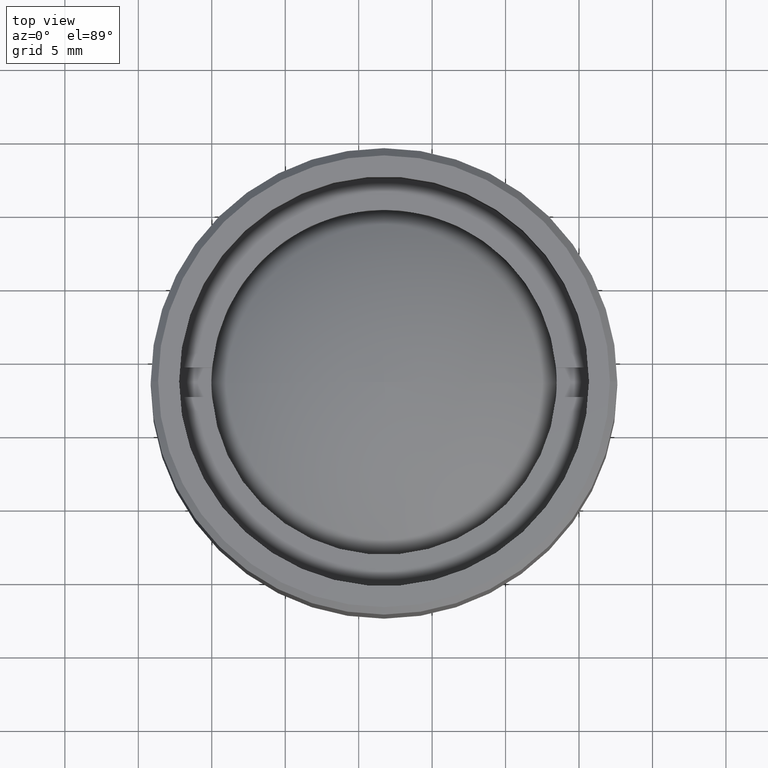
[diagram: clean part render]
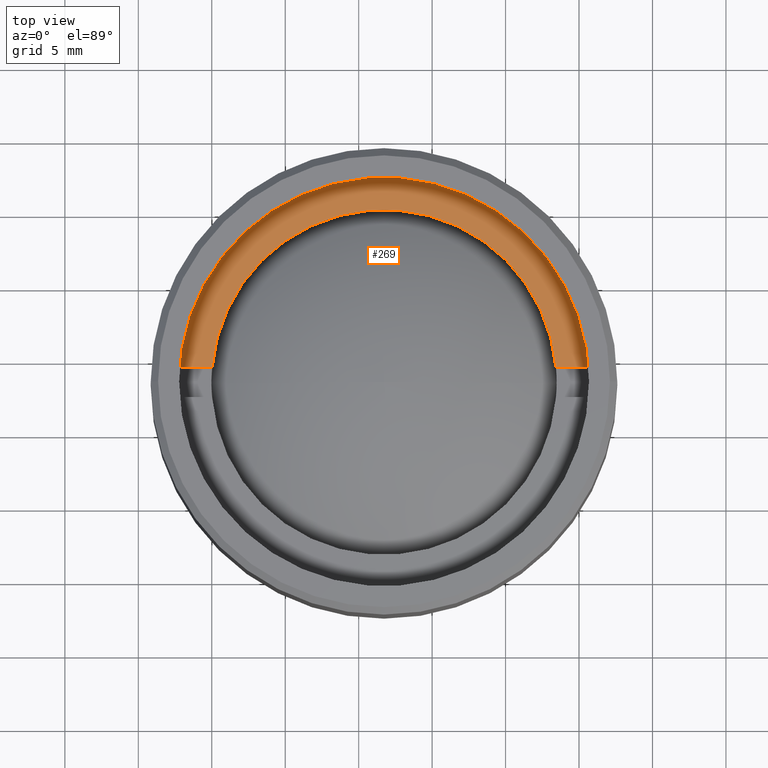
[diagram: same view with one face highlighted and labeled with its STEP entity id]
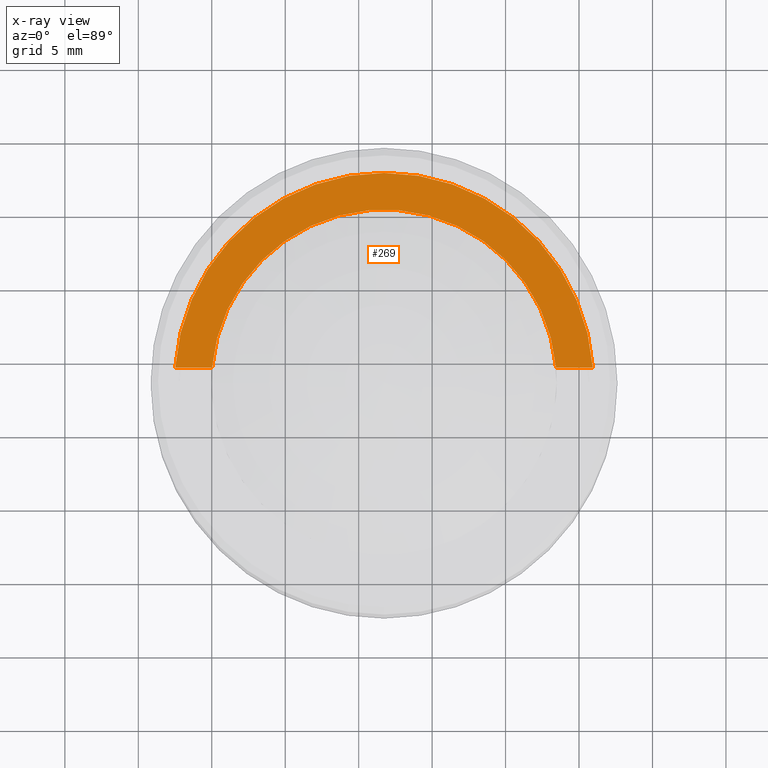
[diagram: x-ray of the same camera — body ghosted, the highlighted face saturated]
A machine part, top view. The second image highlights one B-rep face of the part: STEP entity #269.
The next image is the same camera in x-ray: the body ghosted, the highlighted face saturated — about 0% of this face is hidden behind the body in this view.
In plain terms, the highlighted planar face has unit normal (0, 0, 1).
Its self-contained STEP definition (entity closure, byte-faithful):
#7 = CARTESIAN_POINT ( 'NONE',  ( -11.70736947396809668, 1.000000000000000000, 2.500000000000000000 ) ) ;
#23 = CARTESIAN_POINT ( 'NONE',  ( 0.000000000000000000, 0.000000000000000000, 2.500000000000000000 ) ) ;
#38 = CARTESIAN_POINT ( 'NONE',  ( 14.21486897582949993, 1.000000000000000000, 2.500000000000000000 ) ) ;
#142 = AXIS2_PLACEMENT_3D ( 'NONE', #23, #315, #809 ) ;
#269 = ADVANCED_FACE ( 'NONE', ( #1172 ), #400, .T. ) ;
#315 = DIRECTION ( 'NONE',  ( 0.000000000000000000, 0.000000000000000000, 1.000000000000000000 ) ) ;
#400 = PLANE ( 'NONE',  #1250 ) ;
#405 = CIRCLE ( 'NONE', #512, 14.25000000000000000 ) ;
#427 = EDGE_CURVE ( 'NONE', #1203, #1406, #1410, .T. ) ;
#449 = ORIENTED_EDGE ( 'NONE', *, *, #1265, .F. ) ;
#512 = AXIS2_PLACEMENT_3D ( 'NONE', #1126, #875, #1678 ) ;
#653 = EDGE_LOOP ( 'NONE', ( #449, #869, #716, #1004 ) ) ;
#669 = DIRECTION ( 'NONE',  ( -1.000000000000000000, -0.000000000000000000, -0.000000000000000000 ) ) ;
#716 = ORIENTED_EDGE ( 'NONE', *, *, #1570, .F. ) ;
#768 = DIRECTION ( 'NONE',  ( 0.000000000000000000, 0.000000000000000000, 1.000000000000000000 ) ) ;
#809 = DIRECTION ( 'NONE',  ( 1.000000000000000000, 0.000000000000000000, 0.000000000000000000 ) ) ;
#813 = VECTOR ( 'NONE', #669, 1000.000000000000000 ) ;
#821 = CARTESIAN_POINT ( 'NONE',  ( -14.21486897582949993, 1.000000000000000000, 2.500000000000000000 ) ) ;
#869 = ORIENTED_EDGE ( 'NONE', *, *, #1222, .T. ) ;
#875 = DIRECTION ( 'NONE',  ( 0.000000000000000000, 0.000000000000000000, 1.000000000000000000 ) ) ;
#893 = CARTESIAN_POINT ( 'NONE',  ( -30.62185530834360492, 1.000000000000000000, 2.500000000000000000 ) ) ;
#927 = VECTOR ( 'NONE', #1301, 1000.000000000000000 ) ;
#1004 = ORIENTED_EDGE ( 'NONE', *, *, #427, .F. ) ;
#1046 = VERTEX_POINT ( 'NONE', #38 ) ;
#1126 = CARTESIAN_POINT ( 'NONE',  ( 0.000000000000000000, 0.000000000000000000, 2.500000000000000000 ) ) ;
#1172 = FACE_OUTER_BOUND ( 'NONE', #653, .T. ) ;
#1203 = VERTEX_POINT ( 'NONE', #1527 ) ;
#1222 = EDGE_CURVE ( 'NONE', #1046, #1523, #405, .T. ) ;
#1229 = CARTESIAN_POINT ( 'NONE',  ( -30.62185530834360492, 1.000000000000000000, 2.500000000000000000 ) ) ;
#1250 = AXIS2_PLACEMENT_3D ( 'NONE', #1429, #768, #1323 ) ;
#1265 = EDGE_CURVE ( 'NONE', #1046, #1203, #1280, .T. ) ;
#1280 = LINE ( 'NONE', #893, #927 ) ;
#1301 = DIRECTION ( 'NONE',  ( -1.000000000000000000, -0.000000000000000000, -0.000000000000000000 ) ) ;
#1323 = DIRECTION ( 'NONE',  ( 1.000000000000000000, 0.000000000000000000, -0.000000000000000000 ) ) ;
#1406 = VERTEX_POINT ( 'NONE', #7 ) ;
#1410 = CIRCLE ( 'NONE', #142, 11.75000000000000178 ) ;
#1429 = CARTESIAN_POINT ( 'NONE',  ( 0.000000000000000000, 0.000000000000000000, 2.500000000000000000 ) ) ;
#1523 = VERTEX_POINT ( 'NONE', #821 ) ;
#1527 = CARTESIAN_POINT ( 'NONE',  ( 11.70736947396809668, 1.000000000000000000, 2.500000000000000000 ) ) ;
#1570 = EDGE_CURVE ( 'NONE', #1406, #1523, #1605, .T. ) ;
#1605 = LINE ( 'NONE', #1229, #813 ) ;
#1678 = DIRECTION ( 'NONE',  ( 1.000000000000000000, 0.000000000000000000, 0.000000000000000000 ) ) ;